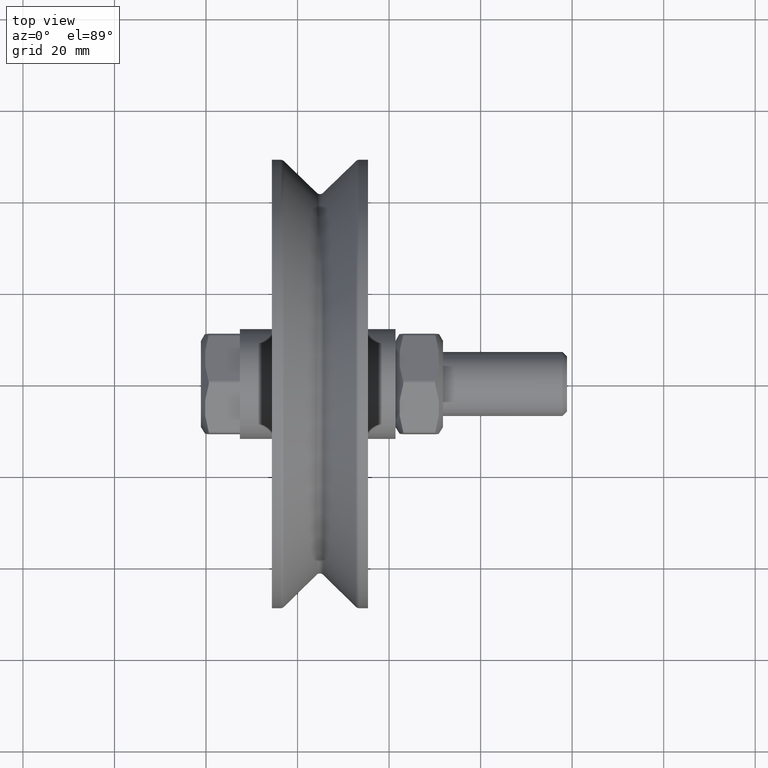
[diagram: clean part render]
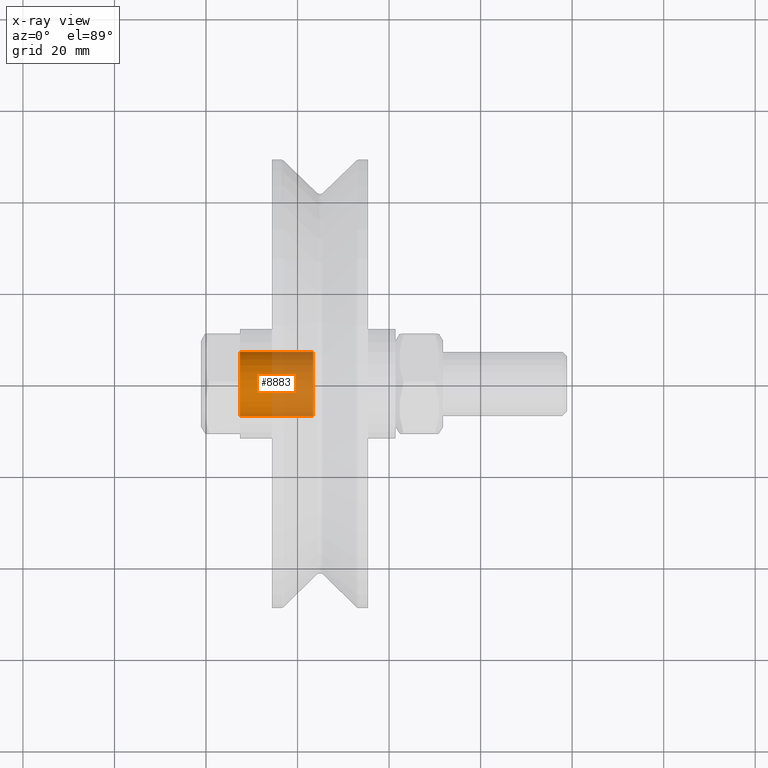
[diagram: x-ray — body ghosted, one internal face saturated and labeled with its STEP entity id]
A machine part, top view, then the same camera in x-ray: the body is ghosted and one INTERNAL B-rep face — a face not visible from any outside direction — is saturated and labeled: STEP entity #8883.
In plain terms, the highlighted cylindrical surface (bore or boss wall) has radius 7 mm, axis along (-1, 0, 0).
Its self-contained STEP definition (entity closure, byte-faithful):
#206 = CARTESIAN_POINT ( 'NONE',  ( 0.000000000000000000, -1.734723475976807094E-15, 16.00000000000000355 ) ) ;
#307 = AXIS2_PLACEMENT_3D ( 'NONE', #14594, #5529, #11036 ) ;
#1440 = EDGE_LOOP ( 'NONE', ( #8502 ) ) ;
#3691 = VERTEX_POINT ( 'NONE', #10853 ) ;
#4182 = CARTESIAN_POINT ( 'NONE',  ( 0.000000000000000000, 0.000000000000000000, 0.000000000000000000 ) ) ;
#4582 = VERTEX_POINT ( 'NONE', #6526 ) ;
#4757 = AXIS2_PLACEMENT_3D ( 'NONE', #206, #5842, #12712 ) ;
#5529 = DIRECTION ( 'NONE',  ( -0.000000000000000000, 1.084202172485504187E-16, -1.000000000000000000 ) ) ;
#5560 = FACE_OUTER_BOUND ( 'NONE', #9859, .T. ) ;
#5842 = DIRECTION ( 'NONE',  ( -0.000000000000000000, 1.084202172485504187E-16, -1.000000000000000000 ) ) ;
#5909 = FACE_OUTER_BOUND ( 'NONE', #1440, .T. ) ;
#6526 = CARTESIAN_POINT ( 'NONE',  ( 0.000000000000000000, 6.999999999999998224, 16.00000000000000355 ) ) ;
#6905 = EDGE_CURVE ( 'NONE', #4582, #4582, #7347, .T. ) ;
#7347 = CIRCLE ( 'NONE', #4757, 7.000000000000000000 ) ;
#7494 = DIRECTION ( 'NONE',  ( -0.000000000000000000, 1.084202172485504187E-16, -1.000000000000000000 ) ) ;
#7624 = AXIS2_PLACEMENT_3D ( 'NONE', #4182, #7494, #8678 ) ;
#8502 = ORIENTED_EDGE ( 'NONE', *, *, #9668, .T. ) ;
#8678 = DIRECTION ( 'NONE',  ( 0.000000000000000000, 1.000000000000000000, 1.084202172485504187E-16 ) ) ;
#8883 = ADVANCED_FACE ( 'NONE', ( #5909, #5560 ), #10480, .F. ) ;
#9668 = EDGE_CURVE ( 'NONE', #3691, #3691, #9949, .T. ) ;
#9859 = EDGE_LOOP ( 'NONE', ( #10244 ) ) ;
#9949 = CIRCLE ( 'NONE', #307, 6.999999999999998224 ) ;
#10244 = ORIENTED_EDGE ( 'NONE', *, *, #6905, .F. ) ;
#10480 = CYLINDRICAL_SURFACE ( 'NONE', #7624, 6.999999999999999112 ) ;
#10853 = CARTESIAN_POINT ( 'NONE',  ( 0.000000000000000000, 6.999999999999998224, -1.408343819019457261E-16 ) ) ;
#11036 = DIRECTION ( 'NONE',  ( 0.000000000000000000, 1.000000000000000000, 1.084202172485504187E-16 ) ) ;
#12712 = DIRECTION ( 'NONE',  ( 0.000000000000000000, 1.000000000000000000, 0.000000000000000000 ) ) ;
#14594 = CARTESIAN_POINT ( 'NONE',  ( 0.000000000000000000, 9.755389883943434146E-32, -8.997759026417984847E-16 ) ) ;